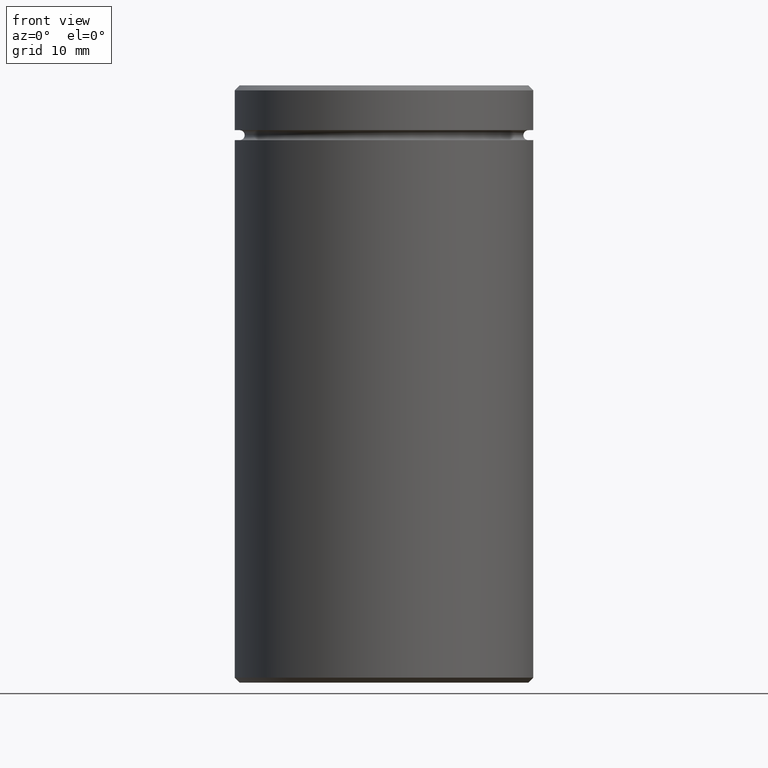
[diagram: clean part render]
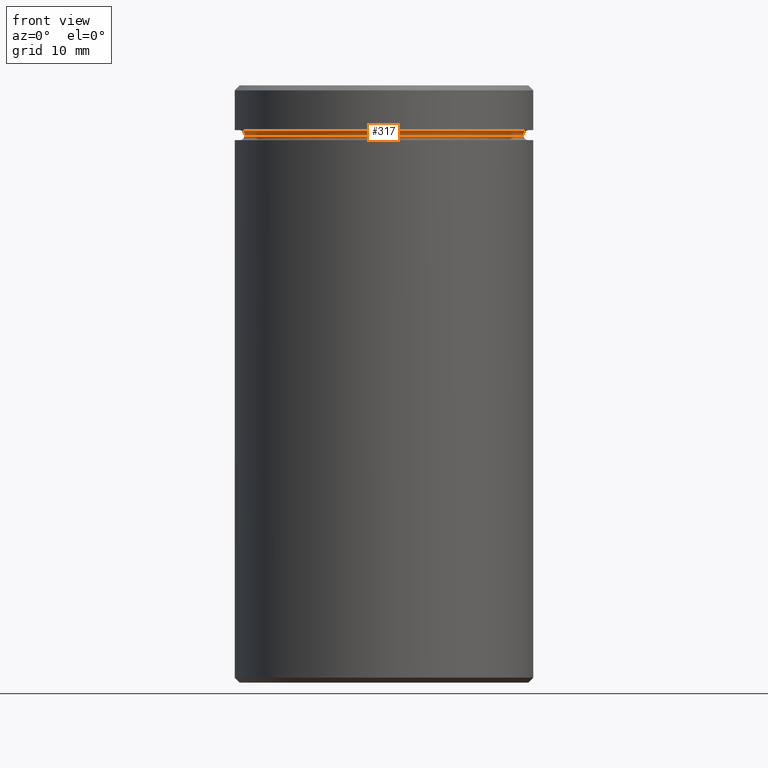
[diagram: same view with one face highlighted and labeled with its STEP entity id]
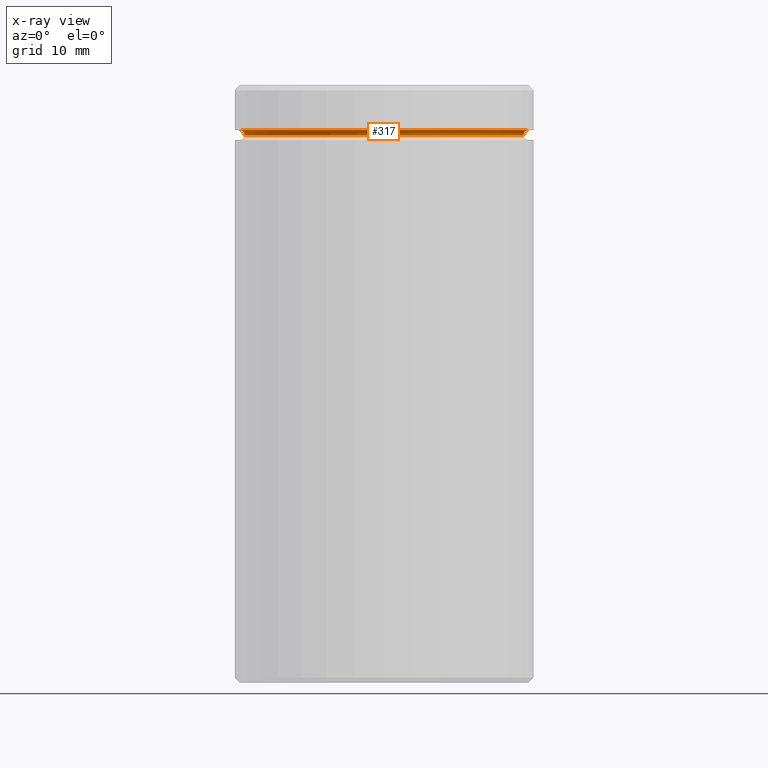
[diagram: x-ray of the same camera — body ghosted, the highlighted face saturated]
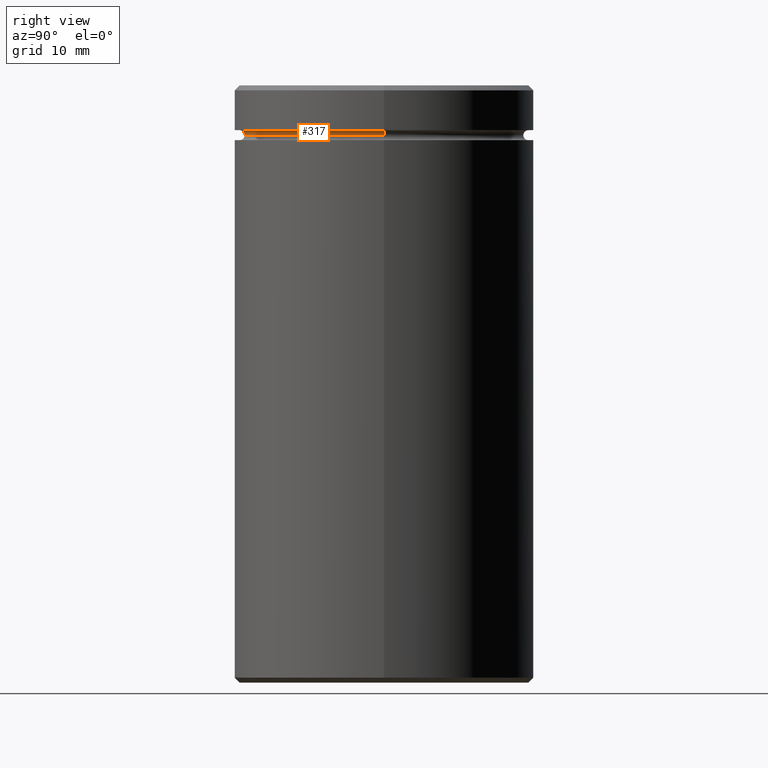
[diagram: same view with one face highlighted and labeled with its STEP entity id]
A machine part, front view. The second image highlights one B-rep face of the part: STEP entity #317.
The next image is the same camera in x-ray: the body ghosted, the highlighted face saturated — about 0% of this face is hidden behind the body in this view.
A second angle (right view) of the same face is appended — the face is thin or edge-on in the first view.
In plain terms, the highlighted toroidal blend (fillet) surface has major radius 14.5 mm and minor (blend) radius 0.5 mm.
Its self-contained STEP definition (entity closure, byte-faithful):
#14 = AXIS2_PLACEMENT_3D ( 'NONE', #543, #320, #411 ) ;
#17 = VERTEX_POINT ( 'NONE', #424 ) ;
#61 = CIRCLE ( 'NONE', #518, 0.5000000000000004441 ) ;
#65 = VERTEX_POINT ( 'NONE', #517 ) ;
#110 = EDGE_CURVE ( 'NONE', #388, #226, #564, .T. ) ;
#119 = DIRECTION ( 'NONE',  ( -0.000000000000000000, -0.000000000000000000, 1.000000000000000000 ) ) ;
#135 = DIRECTION ( 'NONE',  ( -1.000000000000000000, -1.224646799147353454E-16, 0.000000000000000000 ) ) ;
#168 = CARTESIAN_POINT ( 'NONE',  ( 0.000000000000000000, 0.000000000000000000, -4.999999999999999112 ) ) ;
#169 = EDGE_LOOP ( 'NONE', ( #374, #545, #343, #186 ) ) ;
#186 = ORIENTED_EDGE ( 'NONE', *, *, #522, .F. ) ;
#210 = TOROIDAL_SURFACE ( 'NONE', #230, 14.49999999999999822, 0.5000000000000000000 ) ;
#218 = EDGE_CURVE ( 'NONE', #226, #17, #61, .T. ) ;
#226 = VERTEX_POINT ( 'NONE', #384 ) ;
#230 = AXIS2_PLACEMENT_3D ( 'NONE', #313, #353, #445 ) ;
#313 = CARTESIAN_POINT ( 'NONE',  ( 0.000000000000000000, 0.000000000000000000, -5.000000000000000888 ) ) ;
#317 = ADVANCED_FACE ( 'NONE', ( #434 ), #210, .F. ) ;
#320 = DIRECTION ( 'NONE',  ( -0.000000000000000000, -0.000000000000000000, 1.000000000000000000 ) ) ;
#323 = CIRCLE ( 'NONE', #470, 0.5000000000000004441 ) ;
#335 = DIRECTION ( 'NONE',  ( 1.000000000000000000, 0.000000000000000000, 0.000000000000000000 ) ) ;
#343 = ORIENTED_EDGE ( 'NONE', *, *, #399, .F. ) ;
#352 = DIRECTION ( 'NONE',  ( -1.224646799147353207E-16, 1.000000000000000000, 0.000000000000000000 ) ) ;
#353 = DIRECTION ( 'NONE',  ( 0.000000000000000000, 0.000000000000000000, -1.000000000000000000 ) ) ;
#368 = DIRECTION ( 'NONE',  ( 0.000000000000000000, 0.000000000000000000, -1.000000000000000000 ) ) ;
#374 = ORIENTED_EDGE ( 'NONE', *, *, #110, .T. ) ;
#384 = CARTESIAN_POINT ( 'NONE',  ( 13.99999999999999822, 0.000000000000000000, -4.999999999999999112 ) ) ;
#385 = CIRCLE ( 'NONE', #14, 14.49999999999999822 ) ;
#388 = VERTEX_POINT ( 'NONE', #452 ) ;
#395 = AXIS2_PLACEMENT_3D ( 'NONE', #168, #119, #335 ) ;
#399 = EDGE_CURVE ( 'NONE', #65, #17, #385, .T. ) ;
#411 = DIRECTION ( 'NONE',  ( -1.000000000000000000, 0.000000000000000000, 0.000000000000000000 ) ) ;
#424 = CARTESIAN_POINT ( 'NONE',  ( 14.49999999999999822, 1.775737858763662015E-15, -4.500000000000000888 ) ) ;
#428 = CARTESIAN_POINT ( 'NONE',  ( 14.49999999999999822, 1.775737858763662015E-15, -5.000000000000000888 ) ) ;
#434 = FACE_OUTER_BOUND ( 'NONE', #169, .T. ) ;
#445 = DIRECTION ( 'NONE',  ( -1.000000000000000000, 0.000000000000000000, 0.000000000000000000 ) ) ;
#452 = CARTESIAN_POINT ( 'NONE',  ( -13.99999999999999822, 1.745121688784978228E-15, -4.999999999999999112 ) ) ;
#464 = DIRECTION ( 'NONE',  ( -0.000000000000000000, -1.000000000000000000, -0.000000000000000000 ) ) ;
#470 = AXIS2_PLACEMENT_3D ( 'NONE', #513, #464, #368 ) ;
#513 = CARTESIAN_POINT ( 'NONE',  ( -14.49999999999999822, 0.000000000000000000, -5.000000000000000888 ) ) ;
#517 = CARTESIAN_POINT ( 'NONE',  ( -14.49999999999999822, 0.000000000000000000, -4.500000000000000888 ) ) ;
#518 = AXIS2_PLACEMENT_3D ( 'NONE', #428, #352, #135 ) ;
#522 = EDGE_CURVE ( 'NONE', #388, #65, #323, .T. ) ;
#543 = CARTESIAN_POINT ( 'NONE',  ( 0.000000000000000000, 0.000000000000000000, -4.500000000000000888 ) ) ;
#545 = ORIENTED_EDGE ( 'NONE', *, *, #218, .T. ) ;
#564 = CIRCLE ( 'NONE', #395, 13.99999999999999822 ) ;